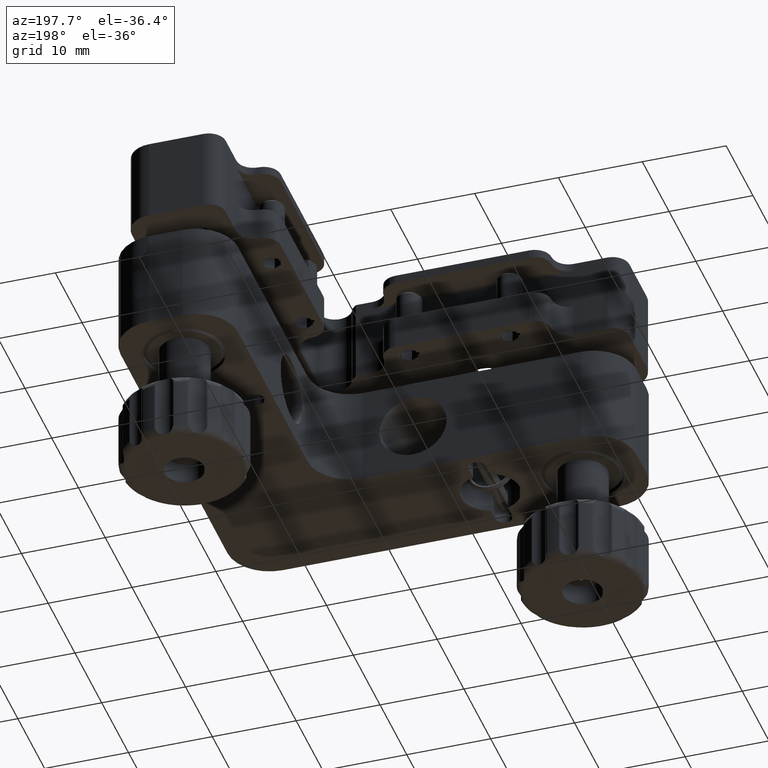
[diagram: clean part render]
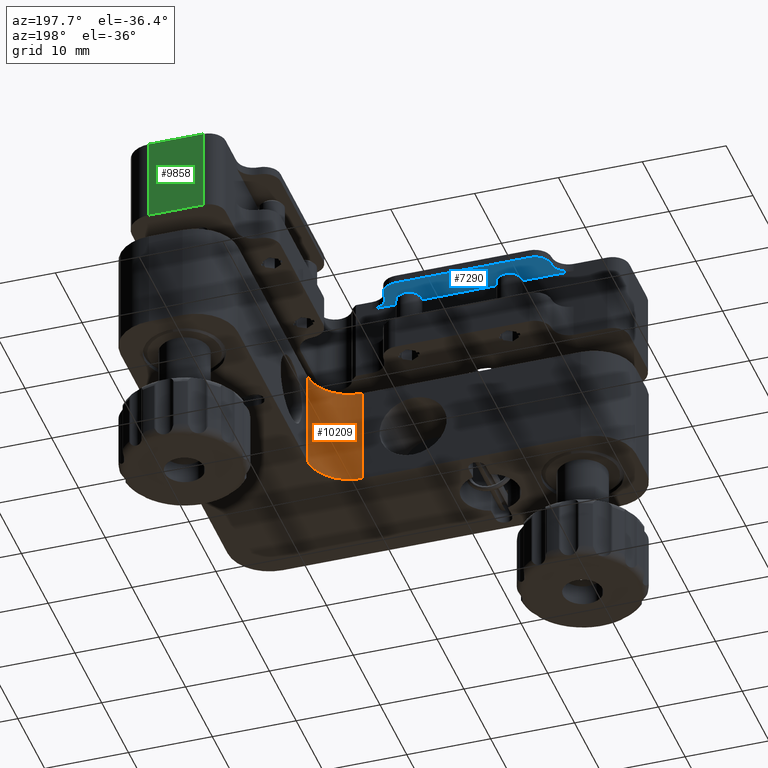
[diagram: same view with three faces highlighted in distinct colors, each labeled with its STEP entity id]
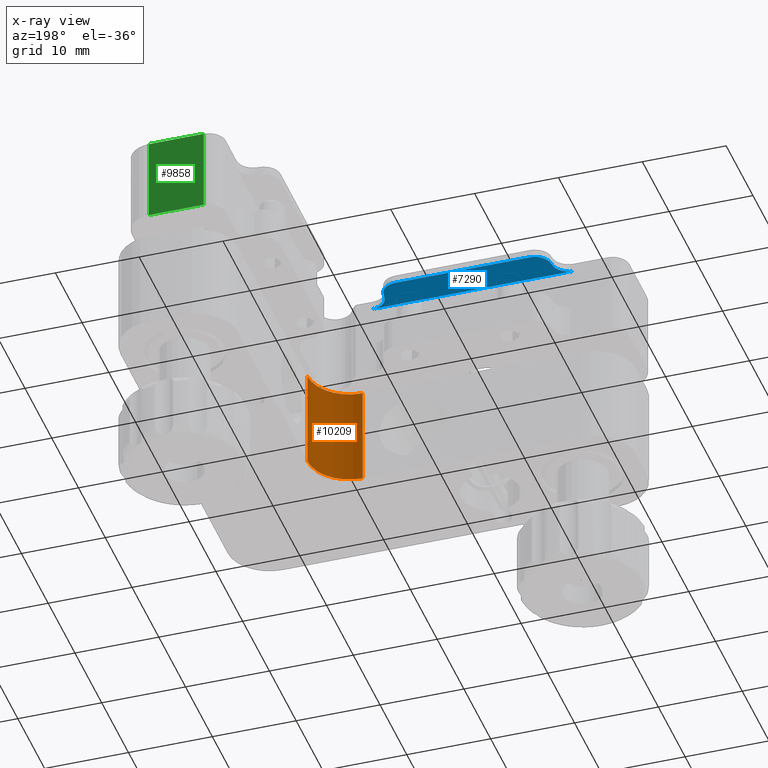
[diagram: x-ray of the same camera — body ghosted, the three highlighted faces saturated]
A machine part, auxiliary view with three faces highlighted in distinct colors.
The next image is the same camera in x-ray (body ghosted, the three faces saturated) — at least one of them is partly hidden behind the body in this view.
Their STEP definitions:

[orange] entity #10209 — the highlighted cylindrical surface (partial cylindrical patch) has radius 5 mm, axis along (0, 0, 1).
#917 = VECTOR ( 'NONE', #14441, 1000.000000000000000 ) ;
#1324 = DIRECTION ( 'NONE',  ( -0.000000000000000000, -0.000000000000000000, -1.000000000000000000 ) ) ;
#1540 = CARTESIAN_POINT ( 'NONE',  ( 6.000000000000008882, -11.00000000000000711, -3.000000000000002665 ) ) ;
#1619 = EDGE_CURVE ( 'NONE', #13900, #4558, #8503, .T. ) ;
#2314 = CIRCLE ( 'NONE', #12392, 5.000000000000000888 ) ;
#2370 = ORIENTED_EDGE ( 'NONE', *, *, #8469, .T. ) ;
#2448 = CIRCLE ( 'NONE', #16492, 5.000000000000000888 ) ;
#2558 = CARTESIAN_POINT ( 'NONE',  ( 6.000000000000008882, -6.000000000000006217, -15.00000000000000355 ) ) ;
#2849 = EDGE_CURVE ( 'NONE', #4558, #3617, #2448, .T. ) ;
#3617 = VERTEX_POINT ( 'NONE', #1540 ) ;
#3692 = DIRECTION ( 'NONE',  ( -0.000000000000000000, -0.000000000000000000, -1.000000000000000000 ) ) ;
#3806 = CARTESIAN_POINT ( 'NONE',  ( 6.000000000000008882, -11.00000000000000711, -15.00000000000000355 ) ) ;
#4558 = VERTEX_POINT ( 'NONE', #7000 ) ;
#4827 = CARTESIAN_POINT ( 'NONE',  ( 6.000000000000008882, -11.00000000000000711, -15.00000000000000355 ) ) ;
#6052 = EDGE_LOOP ( 'NONE', ( #12793, #11986, #9638, #2370 ) ) ;
#6497 = CARTESIAN_POINT ( 'NONE',  ( 6.000000000000008882, -6.000000000000006217, -3.000000000000002665 ) ) ;
#6671 = DIRECTION ( 'NONE',  ( -1.000000000000000000, 0.000000000000000000, 0.000000000000000000 ) ) ;
#7000 = CARTESIAN_POINT ( 'NONE',  ( 11.00000000000001066, -6.000000000000005329, -3.000000000000002665 ) ) ;
#7617 = EDGE_CURVE ( 'NONE', #13900, #9096, #2314, .T. ) ;
#7628 = FACE_OUTER_BOUND ( 'NONE', #6052, .T. ) ;
#7888 = DIRECTION ( 'NONE',  ( 1.000000000000000000, 0.000000000000000000, 0.000000000000000000 ) ) ;
#8469 = EDGE_CURVE ( 'NONE', #9096, #3617, #14703, .T. ) ;
#8503 = LINE ( 'NONE', #16436, #15044 ) ;
#9039 = DIRECTION ( 'NONE',  ( 0.000000000000000000, 0.000000000000000000, 1.000000000000000000 ) ) ;
#9096 = VERTEX_POINT ( 'NONE', #4827 ) ;
#9211 = CYLINDRICAL_SURFACE ( 'NONE', #11487, 5.000000000000000888 ) ;
#9638 = ORIENTED_EDGE ( 'NONE', *, *, #7617, .T. ) ;
#10209 = ADVANCED_FACE ( 'NONE', ( #7628 ), #9211, .F. ) ;
#11487 = AXIS2_PLACEMENT_3D ( 'NONE', #2558, #9039, #7888 ) ;
#11986 = ORIENTED_EDGE ( 'NONE', *, *, #1619, .F. ) ;
#12392 = AXIS2_PLACEMENT_3D ( 'NONE', #13092, #3692, #14324 ) ;
#12793 = ORIENTED_EDGE ( 'NONE', *, *, #2849, .F. ) ;
#13092 = CARTESIAN_POINT ( 'NONE',  ( 6.000000000000008882, -6.000000000000006217, -15.00000000000000355 ) ) ;
#13558 = CARTESIAN_POINT ( 'NONE',  ( 11.00000000000001066, -6.000000000000005329, -15.00000000000000355 ) ) ;
#13876 = DIRECTION ( 'NONE',  ( 0.000000000000000000, 0.000000000000000000, 1.000000000000000000 ) ) ;
#13900 = VERTEX_POINT ( 'NONE', #13558 ) ;
#14324 = DIRECTION ( 'NONE',  ( -1.000000000000000000, 0.000000000000000000, 0.000000000000000000 ) ) ;
#14441 = DIRECTION ( 'NONE',  ( 0.000000000000000000, 0.000000000000000000, 1.000000000000000000 ) ) ;
#14703 = LINE ( 'NONE', #3806, #917 ) ;
#15044 = VECTOR ( 'NONE', #13876, 1000.000000000000000 ) ;
#16436 = CARTESIAN_POINT ( 'NONE',  ( 11.00000000000001066, -6.000000000000005329, -15.00000000000000355 ) ) ;
#16492 = AXIS2_PLACEMENT_3D ( 'NONE', #6497, #1324, #6671 ) ;

[blue] entity #7290 — the highlighted planar face has unit normal (-0, 0, 1).
#215 = CIRCLE ( 'NONE', #3864, 2.000000000000000000 ) ;
#769 = AXIS2_PLACEMENT_3D ( 'NONE', #10649, #2504, #14696 ) ;
#824 = VERTEX_POINT ( 'NONE', #5378 ) ;
#876 = EDGE_CURVE ( 'NONE', #3215, #824, #5560, .T. ) ;
#999 = VERTEX_POINT ( 'NONE', #8250 ) ;
#1547 = DIRECTION ( 'NONE',  ( 0.000000000000000000, -0.000000000000000000, -1.000000000000000000 ) ) ;
#2258 = CARTESIAN_POINT ( 'NONE',  ( -14.99999999999999645, -7.499999999999990230, 9.000000000000001776 ) ) ;
#2504 = DIRECTION ( 'NONE',  ( -0.000000000000000000, 0.000000000000000000, 1.000000000000000000 ) ) ;
#2931 = CARTESIAN_POINT ( 'NONE',  ( 4.999999999999998224, -9.499999999999996447, 9.000000000000001776 ) ) ;
#3038 = CIRCLE ( 'NONE', #6934, 2.000000000000000000 ) ;
#3206 = CARTESIAN_POINT ( 'NONE',  ( 2.999999999999997780, -9.499999999999996447, 9.000000000000001776 ) ) ;
#3215 = VERTEX_POINT ( 'NONE', #8681 ) ;
#3807 = DIRECTION ( 'NONE',  ( 1.000000000000000000, -2.723264448084169731E-16, 0.000000000000000000 ) ) ;
#3864 = AXIS2_PLACEMENT_3D ( 'NONE', #2931, #4420, #14973 ) ;
#4420 = DIRECTION ( 'NONE',  ( -0.000000000000000000, 0.000000000000000000, 1.000000000000000000 ) ) ;
#5192 = EDGE_CURVE ( 'NONE', #3215, #6694, #10484, .T. ) ;
#5378 = CARTESIAN_POINT ( 'NONE',  ( -17.00000000000000355, -9.499999999999991118, 9.000000000000001776 ) ) ;
#5420 = LINE ( 'NONE', #9023, #12134 ) ;
#5560 = CIRCLE ( 'NONE', #769, 2.000000000000000000 ) ;
#5635 = ORIENTED_EDGE ( 'NONE', *, *, #5192, .F. ) ;
#6533 = CARTESIAN_POINT ( 'NONE',  ( 5.499999999999995559, -5.499999999999997335, 9.000000000000001776 ) ) ;
#6619 = CARTESIAN_POINT ( 'NONE',  ( 0.9999999999999978906, -9.499999999999996447, 9.000000000000001776 ) ) ;
#6668 = VECTOR ( 'NONE', #3807, 1000.000000000000000 ) ;
#6694 = VERTEX_POINT ( 'NONE', #9198 ) ;
#6791 = EDGE_CURVE ( 'NONE', #999, #15138, #5420, .T. ) ;
#6934 = AXIS2_PLACEMENT_3D ( 'NONE', #9114, #13270, #10444 ) ;
#7290 = ADVANCED_FACE ( 'NONE', ( #9261 ), #14720, .F. ) ;
#7918 = CARTESIAN_POINT ( 'NONE',  ( 9.499999999999996447, -11.49999999999999645, 9.000000000000001776 ) ) ;
#8093 = VERTEX_POINT ( 'NONE', #3206 ) ;
#8250 = CARTESIAN_POINT ( 'NONE',  ( 1.000000000000000000, -7.499999999999995559, 9.000000000000001776 ) ) ;
#8681 = CARTESIAN_POINT ( 'NONE',  ( -19.00000000000000711, -11.49999999999998934, 9.000000000000001776 ) ) ;
#9023 = CARTESIAN_POINT ( 'NONE',  ( 5.499999999999994671, -7.499999999999997335, 9.000000000000001776 ) ) ;
#9114 = CARTESIAN_POINT ( 'NONE',  ( -15.00000000000000355, -9.499999999999991118, 9.000000000000001776 ) ) ;
#9174 = DIRECTION ( 'NONE',  ( 2.220446049250312588E-16, 1.000000000000000000, 0.000000000000000000 ) ) ;
#9198 = CARTESIAN_POINT ( 'NONE',  ( 4.999999999999997335, -11.49999999999999645, 9.000000000000001776 ) ) ;
#9261 = FACE_OUTER_BOUND ( 'NONE', #11140, .T. ) ;
#9328 = EDGE_CURVE ( 'NONE', #824, #15138, #3038, .T. ) ;
#9418 = CIRCLE ( 'NONE', #16755, 2.000000000000000000 ) ;
#9782 = ORIENTED_EDGE ( 'NONE', *, *, #12891, .T. ) ;
#9948 = ORIENTED_EDGE ( 'NONE', *, *, #9328, .T. ) ;
#10444 = DIRECTION ( 'NONE',  ( -1.127570259384924611E-14, 1.000000000000000000, 0.000000000000000000 ) ) ;
#10484 = LINE ( 'NONE', #7918, #6668 ) ;
#10496 = DIRECTION ( 'NONE',  ( -0.000000000000000000, 0.000000000000000000, 1.000000000000000000 ) ) ;
#10649 = CARTESIAN_POINT ( 'NONE',  ( -19.00000000000000711, -9.499999999999989342, 9.000000000000001776 ) ) ;
#11140 = EDGE_LOOP ( 'NONE', ( #5635, #13179, #9948, #14652, #9782, #11545 ) ) ;
#11545 = ORIENTED_EDGE ( 'NONE', *, *, #13883, .T. ) ;
#12134 = VECTOR ( 'NONE', #14390, 1000.000000000000000 ) ;
#12257 = DIRECTION ( 'NONE',  ( 1.084202172485504434E-15, 1.000000000000000000, 0.000000000000000000 ) ) ;
#12891 = EDGE_CURVE ( 'NONE', #999, #8093, #9418, .T. ) ;
#13179 = ORIENTED_EDGE ( 'NONE', *, *, #876, .T. ) ;
#13270 = DIRECTION ( 'NONE',  ( 0.000000000000000000, -0.000000000000000000, -1.000000000000000000 ) ) ;
#13883 = EDGE_CURVE ( 'NONE', #8093, #6694, #215, .T. ) ;
#14113 = AXIS2_PLACEMENT_3D ( 'NONE', #6533, #10496, #9174 ) ;
#14390 = DIRECTION ( 'NONE',  ( -1.000000000000000000, 3.357969640054776903E-16, 0.000000000000000000 ) ) ;
#14652 = ORIENTED_EDGE ( 'NONE', *, *, #6791, .F. ) ;
#14696 = DIRECTION ( 'NONE',  ( 0.000000000000000000, 1.000000000000000000, 0.000000000000000000 ) ) ;
#14720 = PLANE ( 'NONE',  #14113 ) ;
#14973 = DIRECTION ( 'NONE',  ( 4.336808689942017736E-16, 1.000000000000000000, 0.000000000000000000 ) ) ;
#15138 = VERTEX_POINT ( 'NONE', #2258 ) ;
#16755 = AXIS2_PLACEMENT_3D ( 'NONE', #6619, #1547, #12257 ) ;

[green] entity #9858 — the highlighted planar face has unit normal (0, 1, 0).
#454 = VERTEX_POINT ( 'NONE', #5663 ) ;
#732 = DIRECTION ( 'NONE',  ( 0.000000000000000000, 0.000000000000000000, -1.000000000000000000 ) ) ;
#1414 = DIRECTION ( 'NONE',  ( 1.000000000000000000, -3.046504847334506466E-16, 0.000000000000000000 ) ) ;
#1439 = VERTEX_POINT ( 'NONE', #9742 ) ;
#1451 = PLANE ( 'NONE',  #3928 ) ;
#1633 = VERTEX_POINT ( 'NONE', #15735 ) ;
#1800 = CARTESIAN_POINT ( 'NONE',  ( 13.50000000000000178, 24.99999999999999289, 10.00000000000000000 ) ) ;
#2986 = LINE ( 'NONE', #8327, #13393 ) ;
#3928 = AXIS2_PLACEMENT_3D ( 'NONE', #3995, #17376, #12158 ) ;
#3995 = CARTESIAN_POINT ( 'NONE',  ( 20.00000000000000711, 24.99999999999999289, 10.00000000000000000 ) ) ;
#4422 = DIRECTION ( 'NONE',  ( 1.000000000000000000, -3.046504847334506466E-16, 0.000000000000000000 ) ) ;
#5051 = CARTESIAN_POINT ( 'NONE',  ( 13.50000000000000178, 24.99999999999999289, 0.000000000000000000 ) ) ;
#5663 = CARTESIAN_POINT ( 'NONE',  ( 20.00000000000000711, 24.99999999999999289, 10.00000000000000000 ) ) ;
#6000 = LINE ( 'NONE', #1800, #11110 ) ;
#7800 = VECTOR ( 'NONE', #732, 1000.000000000000000 ) ;
#8327 = CARTESIAN_POINT ( 'NONE',  ( 20.00000000000000711, 24.99999999999999289, 0.000000000000000000 ) ) ;
#9742 = CARTESIAN_POINT ( 'NONE',  ( 20.00000000000000711, 24.99999999999999289, 0.000000000000000000 ) ) ;
#9858 = ADVANCED_FACE ( 'NONE', ( #13563 ), #1451, .T. ) ;
#10495 = ORIENTED_EDGE ( 'NONE', *, *, #10748, .T. ) ;
#10748 = EDGE_CURVE ( 'NONE', #13825, #1633, #6000, .T. ) ;
#10897 = VECTOR ( 'NONE', #4422, 1000.000000000000000 ) ;
#11110 = VECTOR ( 'NONE', #16916, 1000.000000000000000 ) ;
#11250 = ORIENTED_EDGE ( 'NONE', *, *, #13438, .F. ) ;
#11264 = LINE ( 'NONE', #12600, #7800 ) ;
#11644 = ORIENTED_EDGE ( 'NONE', *, *, #15690, .T. ) ;
#12158 = DIRECTION ( 'NONE',  ( 1.000000000000000000, -3.046504847334506466E-16, -0.000000000000000000 ) ) ;
#12600 = CARTESIAN_POINT ( 'NONE',  ( 20.00000000000000711, 24.99999999999999289, 10.00000000000000000 ) ) ;
#13164 = EDGE_LOOP ( 'NONE', ( #11250, #10495, #15886, #11644 ) ) ;
#13393 = VECTOR ( 'NONE', #1414, 1000.000000000000000 ) ;
#13438 = EDGE_CURVE ( 'NONE', #13825, #1439, #2986, .T. ) ;
#13563 = FACE_OUTER_BOUND ( 'NONE', #13164, .T. ) ;
#13737 = LINE ( 'NONE', #13816, #10897 ) ;
#13816 = CARTESIAN_POINT ( 'NONE',  ( 20.00000000000000711, 24.99999999999999289, 10.00000000000000000 ) ) ;
#13825 = VERTEX_POINT ( 'NONE', #5051 ) ;
#15529 = EDGE_CURVE ( 'NONE', #1633, #454, #13737, .T. ) ;
#15690 = EDGE_CURVE ( 'NONE', #454, #1439, #11264, .T. ) ;
#15735 = CARTESIAN_POINT ( 'NONE',  ( 13.50000000000000178, 24.99999999999999289, 10.00000000000000000 ) ) ;
#15886 = ORIENTED_EDGE ( 'NONE', *, *, #15529, .T. ) ;
#16916 = DIRECTION ( 'NONE',  ( -0.000000000000000000, 0.000000000000000000, 1.000000000000000000 ) ) ;
#17376 = DIRECTION ( 'NONE',  ( 3.046504847334506466E-16, 1.000000000000000000, 0.000000000000000000 ) ) ;